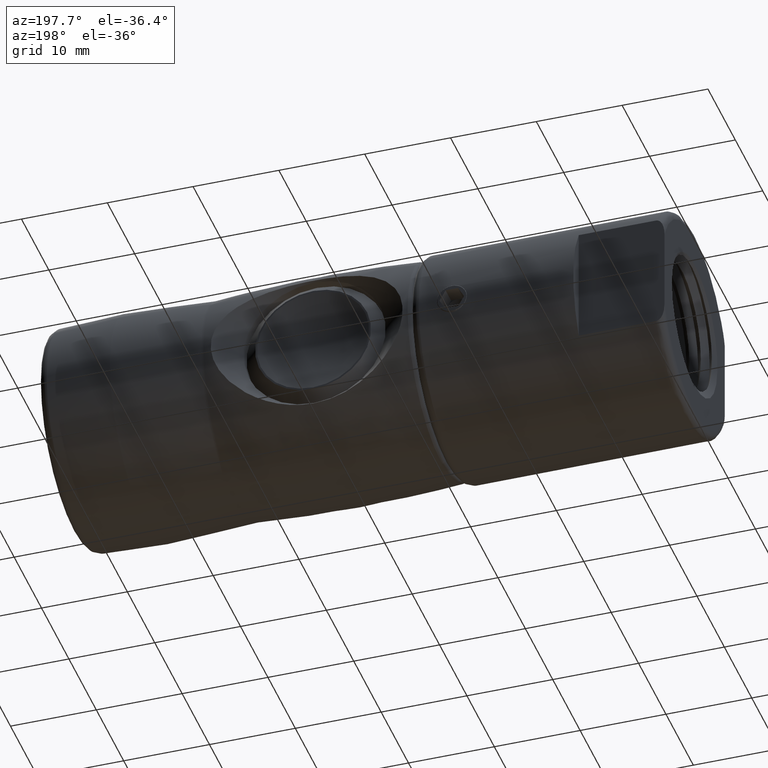
[diagram: clean part render]
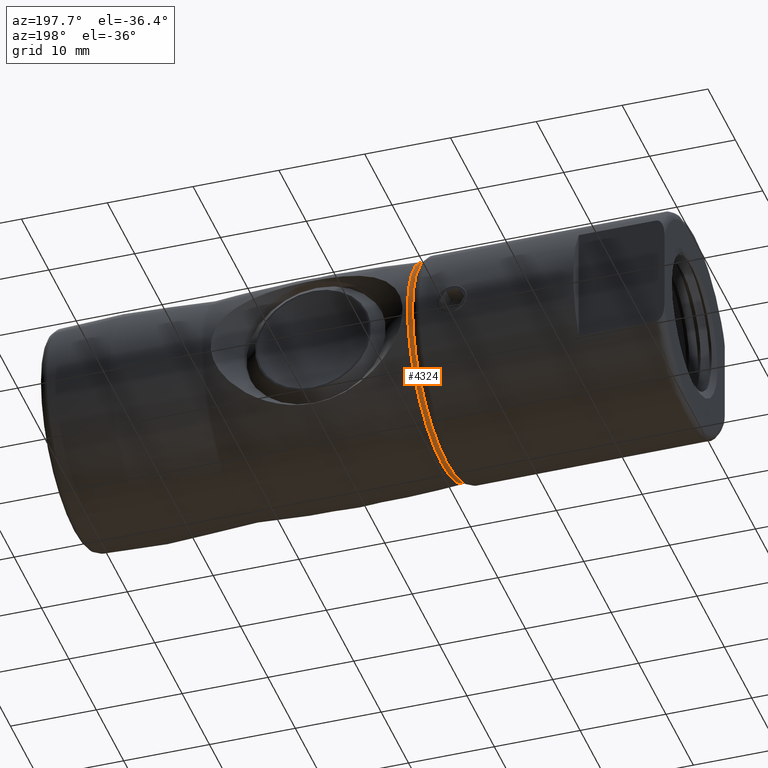
[diagram: same view with one face highlighted and labeled with its STEP entity id]
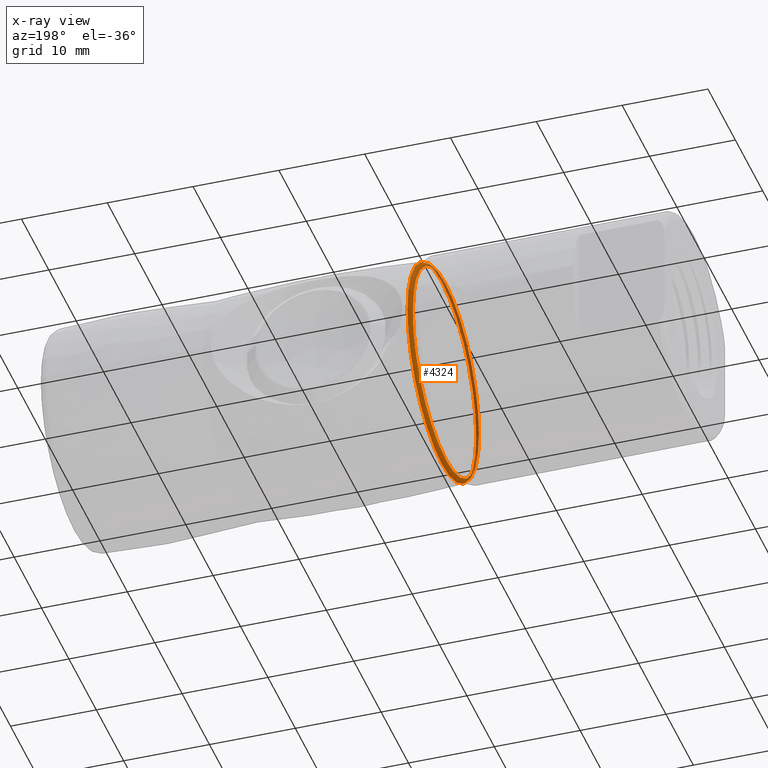
[diagram: x-ray of the same camera — body ghosted, the highlighted face saturated]
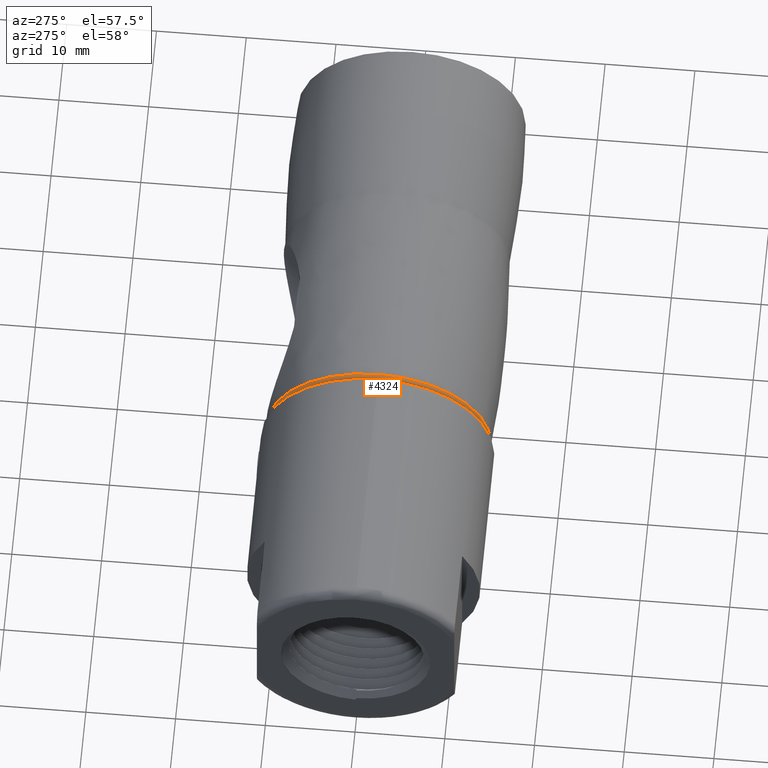
[diagram: same view with one face highlighted and labeled with its STEP entity id]
A machine part, auxiliary view. The second image highlights one B-rep face of the part: STEP entity #4324.
The next image is the same camera in x-ray: the body ghosted, the highlighted face saturated — about 31% of this face is hidden behind the body in this view.
A second angle (auxiliary view) of the same face is appended — the face is thin or edge-on in the first view.
In plain terms, the highlighted toroidal blend (fillet) surface has major radius 12.0387 mm and minor (blend) radius 0.5 mm.
Its self-contained STEP definition (entity closure, byte-faithful):
#952=FACE_OUTER_BOUND('',#1213,.T.);
#1213=EDGE_LOOP('',(#3058,#3059,#3060,#3061,#3062,#3063));
#1520=CIRCLE('',#4677,12.0386538789867);
#1521=CIRCLE('',#4678,12.0386538789867);
#1522=CIRCLE('',#4679,0.500000000000105);
#1523=CIRCLE('',#4680,12.5371014658988);
#1524=CIRCLE('',#4681,12.5371014658988);
#1850=VERTEX_POINT('',#7360);
#1851=VERTEX_POINT('',#7361);
#1852=VERTEX_POINT('',#7364);
#1853=VERTEX_POINT('',#7366);
#2362=EDGE_CURVE('',#1850,#1851,#1520,.T.);
#2363=EDGE_CURVE('',#1851,#1850,#1521,.T.);
#2364=EDGE_CURVE('',#1851,#1852,#1522,.T.);
#2365=EDGE_CURVE('',#1852,#1853,#1523,.T.);
#2366=EDGE_CURVE('',#1853,#1852,#1524,.T.);
#3058=ORIENTED_EDGE('',*,*,#2362,.F.);
#3059=ORIENTED_EDGE('',*,*,#2363,.F.);
#3060=ORIENTED_EDGE('',*,*,#2364,.T.);
#3061=ORIENTED_EDGE('',*,*,#2365,.T.);
#3062=ORIENTED_EDGE('',*,*,#2366,.T.);
#3063=ORIENTED_EDGE('',*,*,#2364,.F.);
#4290=TOROIDAL_SURFACE('',#4676,12.0386538789852,0.500000000000105);
#4324=ADVANCED_FACE('',(#952),#4290,.T.);
#4676=AXIS2_PLACEMENT_3D('',#7359,#5305,#5306);
#4677=AXIS2_PLACEMENT_3D('',#7362,#5307,#5308);
#4678=AXIS2_PLACEMENT_3D('',#7363,#5309,#5310);
#4679=AXIS2_PLACEMENT_3D('',#7365,#5311,#5312);
#4680=AXIS2_PLACEMENT_3D('',#7367,#5313,#5314);
#4681=AXIS2_PLACEMENT_3D('',#7368,#5315,#5316);
#5305=DIRECTION('center_axis',(-1.,0.,0.));
#5306=DIRECTION('ref_axis',(0.,0.,1.));
#5307=DIRECTION('center_axis',(-1.,0.,0.));
#5308=DIRECTION('ref_axis',(0.,0.,1.));
#5309=DIRECTION('center_axis',(-1.,0.,0.));
#5310=DIRECTION('ref_axis',(0.,0.,1.));
#5311=DIRECTION('center_axis',(0.,-1.,1.22464679914735E-16));
#5312=DIRECTION('ref_axis',(0.,-1.22464679914735E-16,-1.));
#5313=DIRECTION('center_axis',(-1.,0.,0.));
#5314=DIRECTION('ref_axis',(0.,0.,1.));
#5315=DIRECTION('center_axis',(-1.,0.,0.));
#5316=DIRECTION('ref_axis',(0.,0.,1.));
#7359=CARTESIAN_POINT('Origin',(10.2000000000082,0.,0.));
#7360=CARTESIAN_POINT('',(9.70000000000804,0.,12.0386538789867));
#7361=CARTESIAN_POINT('',(9.70000000000804,-1.4743098938944E-15,-12.0386538789867));
#7362=CARTESIAN_POINT('Origin',(9.70000000000804,0.,0.));
#7363=CARTESIAN_POINT('Origin',(9.70000000000804,0.,0.));
#7364=CARTESIAN_POINT('',(10.160629921268,-1.53535211807986E-15,-12.5371014658988));
#7365=CARTESIAN_POINT('Origin',(10.2000000000082,-1.47430989389421E-15,
-12.0386538789852));
#7366=CARTESIAN_POINT('',(10.160629921268,0.,12.5371014658988));
#7367=CARTESIAN_POINT('Origin',(10.160629921268,0.,0.));
#7368=CARTESIAN_POINT('Origin',(10.160629921268,0.,0.));